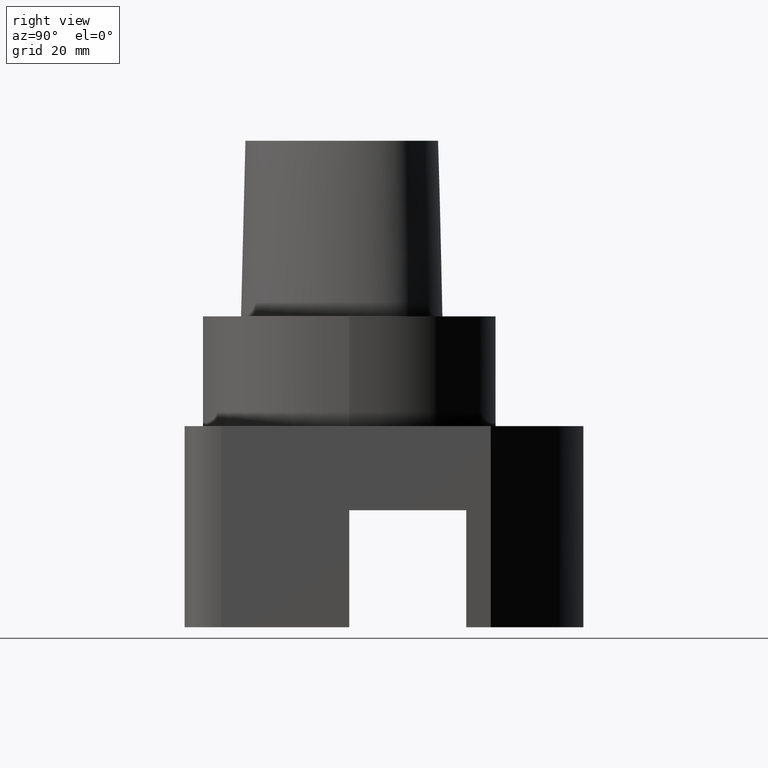
[diagram: clean part render]
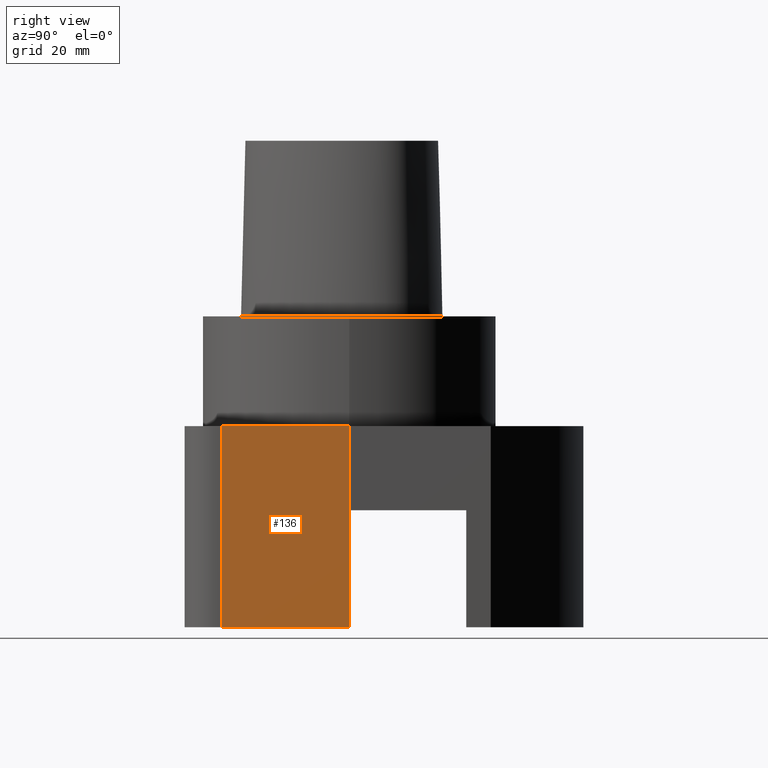
[diagram: same view with one face highlighted and labeled with its STEP entity id]
A machine part, right view. The second image highlights one B-rep face of the part: STEP entity #136.
In plain terms, the highlighted planar face has unit normal (1, -0, -0).
Its self-contained STEP definition (entity closure, byte-faithful):
#133=EDGE_CURVE('240[2]',#306,#307,#308,.T.);
#136=ADVANCED_FACE('240[2]',(#311),#312,.T.);
#142=EDGE_CURVE('240[2]',#320,#306,#321,.T.);
#144=EDGE_CURVE('240[2]',#227,#307,#323,.T.);
#166=EDGE_CURVE('240[2]',#320,#227,#349,.T.);
#227=VERTEX_POINT('',#410);
#306=VERTEX_POINT('',#568);
#307=VERTEX_POINT('',#569);
#308=LINE('',#570,#571);
#311=FACE_OUTER_BOUND('',#575,.T.);
#312=PLANE('',#576);
#320=VERTEX_POINT('',#590);
#321=LINE('',#591,#592);
#323=LINE('',#595,#596);
#349=LINE('',#638,#639);
#410=CARTESIAN_POINT('',(51.0,-0.10000000000004,-30.0));
#568=CARTESIAN_POINT('',(51.0,-35.0,-85.0));
#569=CARTESIAN_POINT('',(51.0,-35.0,-30.0));
#570=CARTESIAN_POINT('',(51.0,-35.0,-76.0));
#571=VECTOR('',#1288,0.71875);
#575=EDGE_LOOP('',(#1290,#1291,#1292,#1293));
#576=AXIS2_PLACEMENT_3D('',#1294,#1295,#1296);
#590=CARTESIAN_POINT('',(51.0,-0.100000000000045,-85.0));
#591=CARTESIAN_POINT('',(51.0,-0.100000000000045,-85.0));
#592=VECTOR('',#1300,1.0);
#595=CARTESIAN_POINT('',(51.0,-0.10000000000004,-30.0));
#596=VECTOR('',#1301,1.0);
#638=CARTESIAN_POINT('',(51.0,-0.100000000000045,-76.0));
#639=VECTOR('',#1327,0.71875);
#1288=DIRECTION('',(-1.25052631576651E-026,2.82200504946853E-016,1.0));
#1290=ORIENTED_EDGE('',*,*,#166,.T.);
#1291=ORIENTED_EDGE('',*,*,#144,.T.);
#1292=ORIENTED_EDGE('',*,*,#133,.F.);
#1293=ORIENTED_EDGE('',*,*,#142,.F.);
#1294=CARTESIAN_POINT('',(51.0,-35.0,-53.0));
#1295=DIRECTION('',(1.0,-1.83697019872103E-016,-3.12993345937834E-032));
#1296=DIRECTION('',(0.0,-1.70385641615608E-016,1.0));
#1300=DIRECTION('',(-1.83697019872103E-016,-1.0,6.12323399573677E-017));
#1301=DIRECTION('',(-2.03593907094585E-016,-1.0,6.12323399573676E-017));
#1327=DIRECTION('',(-1.25052631576651E-026,9.57554426592593E-017,1.0));